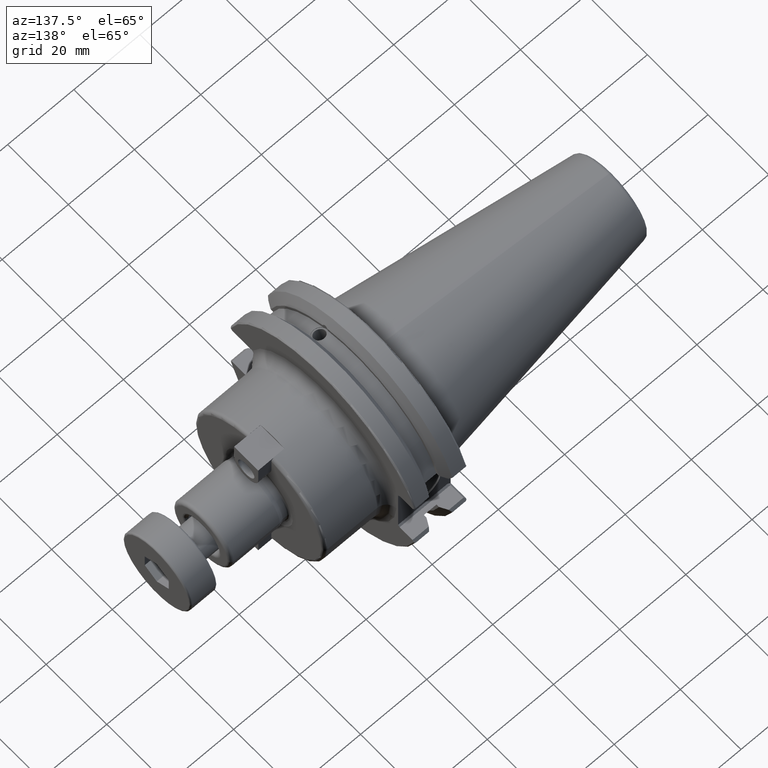
[diagram: clean part render]
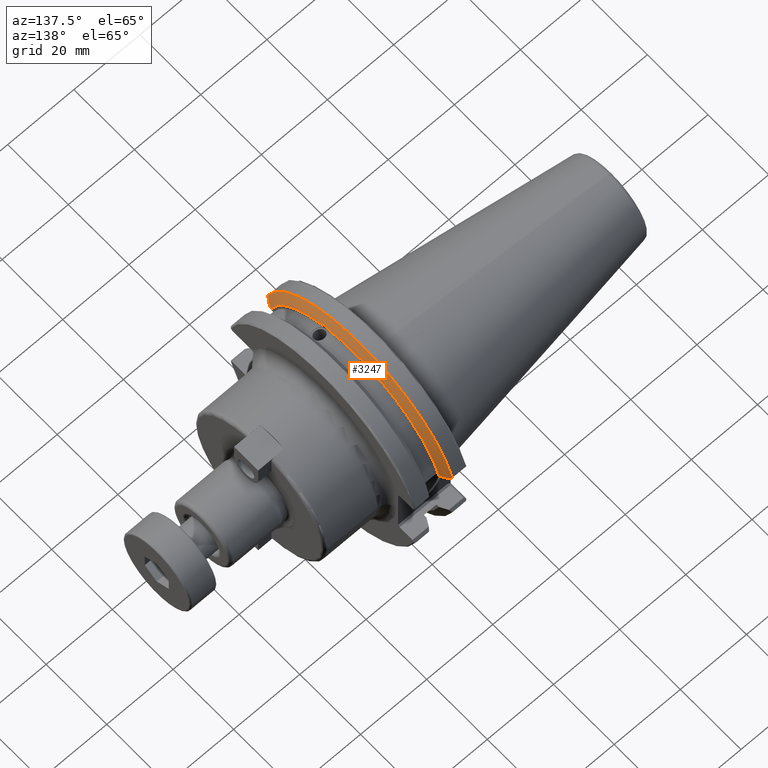
[diagram: same view with one face highlighted and labeled with its STEP entity id]
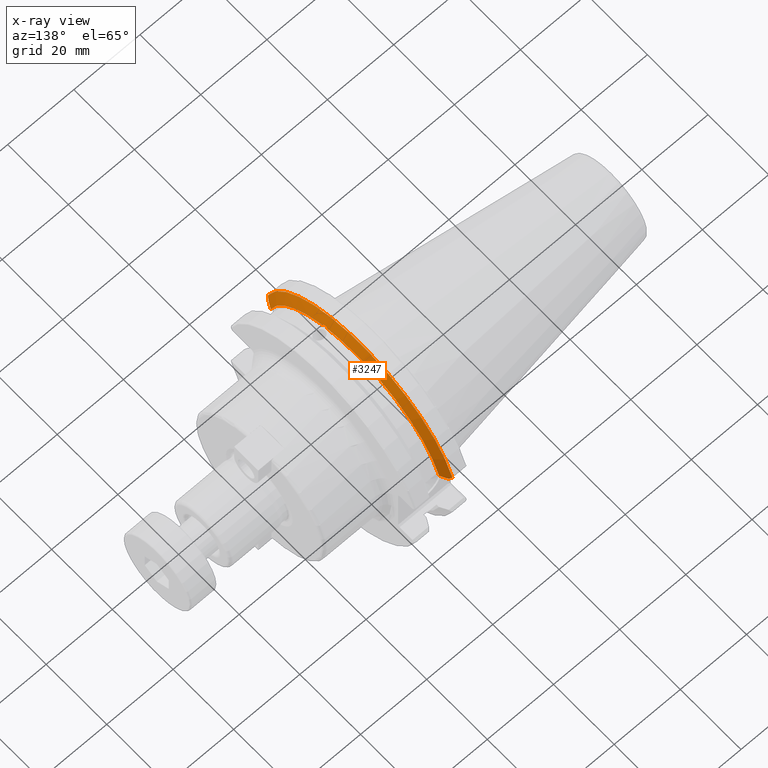
[diagram: x-ray of the same camera — body ghosted, the highlighted face saturated]
A machine part, auxiliary view. The second image highlights one B-rep face of the part: STEP entity #3247.
The next image is the same camera in x-ray: the body ghosted, the highlighted face saturated — about 0% of this face is hidden behind the body in this view.
In plain terms, the highlighted conical surface has half-angle 60 deg.
Its self-contained STEP definition (entity closure, byte-faithful):
#598=CARTESIAN_POINT('',(3.628503937008E-1,-4.215041657325E-1,
1.059559465109E0));
#599=CARTESIAN_POINT('',(3.613192571732E-1,-4.192222648033E-1,
1.063321376878E0));
#600=CARTESIAN_POINT('',(3.587561258797E-1,-4.142131549624E-1,
1.070056533980E0));
#601=CARTESIAN_POINT('',(3.563979300445E-1,-4.056619636971E-1,
1.077693248962E0));
#602=CARTESIAN_POINT('',(3.554723210206E-1,-3.961170024166E-1,
1.082944191129E0));
#603=CARTESIAN_POINT('',(3.558917075798E-1,-3.864270420293E-1,
1.085665915005E0));
#604=CARTESIAN_POINT('',(3.573723753649E-1,-3.767659313184E-1,
1.086340704482E0));
#605=CARTESIAN_POINT('',(3.597658071252E-1,-3.671534089864E-1,
1.085249487783E0));
#606=CARTESIAN_POINT('',(3.617644474906E-1,-3.611355786514E-1,
1.083610882784E0));
#607=CARTESIAN_POINT('',(3.628503937008E-1,-3.581807719874E-1,
1.082607295565E0));
#609=CARTESIAN_POINT('',(3.628503937008E-1,0.E0,0.E0));
#610=DIRECTION('',(1.E0,0.E0,0.E0));
#611=DIRECTION('',(0.E0,-3.696364089106E-1,9.291764768911E-1));
#612=AXIS2_PLACEMENT_3D('',#609,#610,#611);
#614=CARTESIAN_POINT('',(3.628503937008E-1,-1.093784192104E0,
3.224409448819E-1));
#615=CARTESIAN_POINT('',(3.581728829773E-1,-1.102230577728E0,
3.224409448819E-1));
#616=CARTESIAN_POINT('',(3.487492204158E-1,-1.119231653199E0,
3.224409448819E-1));
#617=CARTESIAN_POINT('',(3.344085514891E-1,-1.145058004023E0,
3.224409448819E-1));
#618=CARTESIAN_POINT('',(3.247111404421E-1,-1.162493141206E0,
3.224409448819E-1));
#619=CARTESIAN_POINT('',(3.198283118296E-1,-1.171265069796E0,
3.224409448819E-1));
#621=CARTESIAN_POINT('',(2.995272033465E-1,-1.197670401482E0,
3.578904991948E-1));
#622=CARTESIAN_POINT('',(3.029853268600E-1,-1.193208890401E0,
3.519008535706E-1));
#623=CARTESIAN_POINT('',(3.098269961765E-1,-1.184346498395E0,
3.400029592180E-1));
#624=CARTESIAN_POINT('',(3.165194219132E-1,-1.175605342186E0,
3.282678257435E-1));
#625=CARTESIAN_POINT('',(3.198283118296E-1,-1.171265069796E0,
3.224409448819E-1));
#627=CARTESIAN_POINT('',(2.995272033465E-1,0.E0,0.E0));
#628=DIRECTION('',(-1.E0,0.E0,0.E0));
#629=DIRECTION('',(0.E0,-9.581363211856E-1,2.863123993559E-1));
#630=AXIS2_PLACEMENT_3D('',#627,#628,#629);
#632=CARTESIAN_POINT('',(3.198283118296E-1,1.171265069796E0,3.224409448819E-1));
#633=CARTESIAN_POINT('',(3.165000411281E-1,1.175630763971E0,3.283019548710E-1));
#634=CARTESIAN_POINT('',(3.097879601363E-1,1.184397267591E0,3.400711176256E-1));
#635=CARTESIAN_POINT('',(3.029656791472E-1,1.193234238972E0,3.519348844074E-1));
#636=CARTESIAN_POINT('',(2.995272033465E-1,1.197670401482E0,3.578904991948E-1));
#638=CARTESIAN_POINT('',(3.198283118296E-1,1.171265069796E0,3.224409448819E-1));
#639=CARTESIAN_POINT('',(3.247096340495E-1,1.162495847418E0,3.224409448819E-1));
#640=CARTESIAN_POINT('',(3.344050405099E-1,1.145064320097E0,3.224409448819E-1));
#641=CARTESIAN_POINT('',(3.487457374964E-1,1.119237932591E0,3.224409448819E-1));
#642=CARTESIAN_POINT('',(3.581713922007E-1,1.102233269689E0,3.224409448819E-1));
#643=CARTESIAN_POINT('',(3.628503937008E-1,1.093784192104E0,3.224409448819E-1));
#645=CARTESIAN_POINT('',(3.628503937008E-1,0.E0,0.E0));
#646=DIRECTION('',(1.E0,0.E0,0.E0));
#647=DIRECTION('',(0.E0,9.591897156931E-1,2.827633096930E-1));
#648=AXIS2_PLACEMENT_3D('',#645,#646,#647);
#2192=CARTESIAN_POINT('',(3.628503937008E-1,1.093784192104E0,
3.224409448819E-1));
#2194=VERTEX_POINT('',#2192);
#2208=CARTESIAN_POINT('',(3.628503937008E-1,-1.093784192104E0,
3.224409448819E-1));
#2210=VERTEX_POINT('',#2208);
#2224=VERTEX_POINT('',#632);
#2225=VERTEX_POINT('',#636);
#2234=VERTEX_POINT('',#621);
#2235=VERTEX_POINT('',#625);
#2448=VERTEX_POINT('',#598);
#2449=VERTEX_POINT('',#607);
#3225=CARTESIAN_POINT('',(3.311887985236E-1,0.E0,0.E0));
#3226=DIRECTION('',(-1.E0,0.E0,0.E0));
#3227=DIRECTION('',(0.E0,0.E0,-1.E0));
#3228=AXIS2_PLACEMENT_3D('',#3225,#3226,#3227);
#3229=CONICAL_SURFACE('',#3228,1.195160508504E0,6.E1);
#3230=ORIENTED_EDGE('',*,*,#3082,.F.);
#3232=ORIENTED_EDGE('',*,*,#3231,.T.);
#3234=ORIENTED_EDGE('',*,*,#3233,.T.);
#3236=ORIENTED_EDGE('',*,*,#3235,.F.);
#3238=ORIENTED_EDGE('',*,*,#3237,.T.);
#3240=ORIENTED_EDGE('',*,*,#3239,.F.);
#3242=ORIENTED_EDGE('',*,*,#3241,.T.);
#3244=ORIENTED_EDGE('',*,*,#3243,.T.);
#3245=EDGE_LOOP('',(#3230,#3232,#3234,#3236,#3238,#3240,#3242,#3244));
#3246=FACE_OUTER_BOUND('',#3245,.F.);
#3247=ADVANCED_FACE('',(#3246),#3229,.T.);
#608=B_SPLINE_CURVE_WITH_KNOTS('',3,(#598,#599,#600,#601,#602,#603,#604,#605,
#606,#607),.UNSPECIFIED.,.F.,.F.,(4,1,1,1,1,1,1,4),(0.E0,1.428571428571E-1,
2.857142857143E-1,4.285714285714E-1,5.714285714286E-1,7.142857142857E-1,
8.571428571429E-1,1.E0),.UNSPECIFIED.);
#613=CIRCLE('',#612,1.140321017009E0);
#620=B_SPLINE_CURVE_WITH_KNOTS('',3,(#614,#615,#616,#617,#618,#619),
.UNSPECIFIED.,.F.,.F.,(4,1,1,4),(0.E0,3.333333333333E-1,6.666666666667E-1,1.E0),
.UNSPECIFIED.);
#626=B_SPLINE_CURVE_WITH_KNOTS('',3,(#621,#622,#623,#624,#625),.UNSPECIFIED.,
.F.,.F.,(4,1,4),(0.E0,5.E-1,1.E0),.UNSPECIFIED.);
#631=CIRCLE('',#630,1.25E0);
#637=B_SPLINE_CURVE_WITH_KNOTS('',3,(#632,#633,#634,#635,#636),.UNSPECIFIED.,
.F.,.F.,(4,1,4),(0.E0,5.E-1,1.E0),.UNSPECIFIED.);
#644=B_SPLINE_CURVE_WITH_KNOTS('',3,(#638,#639,#640,#641,#642,#643),
.UNSPECIFIED.,.F.,.F.,(4,1,1,4),(0.E0,3.333333333333E-1,6.666666666667E-1,1.E0),
.UNSPECIFIED.);
#649=CIRCLE('',#648,1.140321017009E0);
#3082=EDGE_CURVE('',#2448,#2449,#608,.T.);
#3231=EDGE_CURVE('',#2448,#2210,#613,.T.);
#3233=EDGE_CURVE('',#2210,#2235,#620,.T.);
#3235=EDGE_CURVE('',#2234,#2235,#626,.T.);
#3237=EDGE_CURVE('',#2234,#2225,#631,.T.);
#3239=EDGE_CURVE('',#2224,#2225,#637,.T.);
#3241=EDGE_CURVE('',#2224,#2194,#644,.T.);
#3243=EDGE_CURVE('',#2194,#2449,#649,.T.);